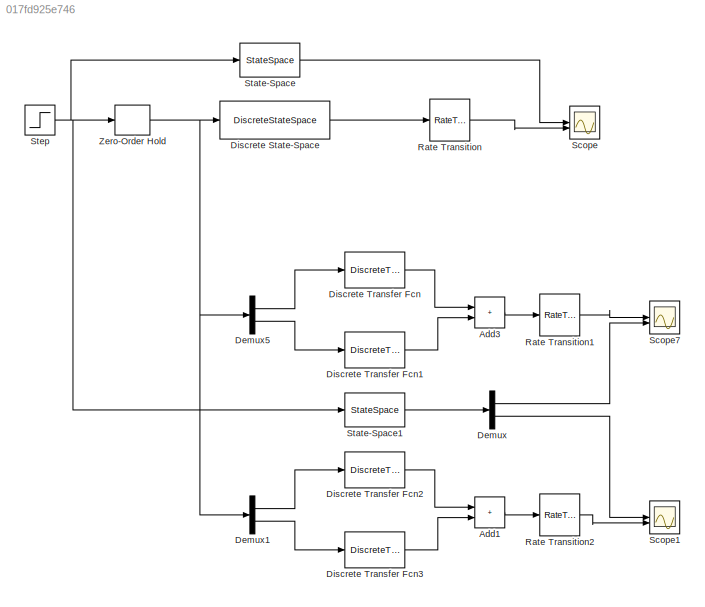
MODEL slx_017fd925e746
KIND model
CONFIG AbsTol = auto
CONFIG EnableMultiTasking = off
CONFIG FixedStep = auto
CONFIG MaxStep = auto
CONFIG MinStep = auto
CONFIG RelTol = 1e-3
CONFIG SampleTimeConstraint = Unconstrained
CONFIG SolverName = VariableStepAuto
CONFIG StartTime = 0.0
CONFIG StopTime = 0.3
BLOCK [Sum] Add1
  IconShape = rectangular
BLOCK [Sum] Add3
  IconShape = rectangular
BLOCK [Demux] Demux
  Outputs = 2
BLOCK [Demux] Demux1
  Outputs = 2
BLOCK [Demux] Demux5
  Outputs = 2
BLOCK [DiscreteStateSpace] Discrete State-Space
  A = A_d
  B = B_d
  C = C_d
  D = D_d
  SampleTime = h
BLOCK [DiscreteTransferFcn] Discrete Transfer Fcn
  Denominator = denz1
  InputPortMap = u0
  Numerator = numz1(1, :)
BLOCK [DiscreteTransferFcn] Discrete Transfer Fcn1
  Denominator = denz1
  InputPortMap = u0
  Numerator = numz1(2, :)
BLOCK [DiscreteTransferFcn] Discrete Transfer Fcn2
  Denominator = denz2
  InputPortMap = u0
  Numerator = numz2(1, :)
BLOCK [DiscreteTransferFcn] Discrete Transfer Fcn3
  Denominator = denz2
  InputPortMap = u0
  Numerator = numz2(2, :)
BLOCK [RateTransition] Rate Transition
BLOCK [RateTransition] Rate Transition1
BLOCK [RateTransition] Rate Transition2
BLOCK [Scope] Scope
  Floating = off
  NumInputPorts = 2
  ScopeSpecificationString = Simulink.scopes.TimeScopeBlockCfg('CurrentConfiguration', extmgr.ConfigurationSet(extmgr.Configuration('Core','General UI',true),extmgr.Configuration('Core','Source UI',true),extmgr.Configuration('Sources','WiredSimulink',true),extmgr.Configuration('Visuals','Time Domain',true,'SerializedDisplays',{struct('MinYLimReal','-44.28634','MaxYLimReal','398.3686','YLabelReal','','MinYLimMag','0.00000','Ma...<+1484ch>
BLOCK [Scope] Scope1
  Floating = off
  NumInputPorts = 2
  ScopeSpecificationString = Simulink.scopes.TimeScopeBlockCfg('CurrentConfiguration', extmgr.ConfigurationSet(extmgr.Configuration('Core','General UI',true),extmgr.Configuration('Core','Source UI',true),extmgr.Configuration('Sources','WiredSimulink',true,'DataLoggingVariableName','ScopeData2'),extmgr.Configuration('Visuals','Time Domain',true,'SerializedDisplays',{struct('MinYLimReal','-44.28634','MaxYLimReal','398.3686','YL...<+1511ch>
BLOCK [Scope] Scope7
  Floating = off
  NumInputPorts = 2
  ScopeSpecificationString = Simulink.scopes.TimeScopeBlockCfg('CurrentConfiguration', extmgr.ConfigurationSet(extmgr.Configuration('Core','General UI',true),extmgr.Configuration('Core','Source UI',true),extmgr.Configuration('Sources','WiredSimulink',true,'DataLoggingVariableName','ScopeData1'),extmgr.Configuration('Visuals','Time Domain',true,'SerializedDisplays',{struct('MinYLimReal','-1.63175','MaxYLimReal','14.68578','YLa...<+1511ch>
BLOCK [StateSpace] State-Space
  A = A
  B = B
  C = C
  D = D
  InitialCondition = 0
BLOCK [StateSpace] State-Space1
  A = A
  B = B
  C = C
  D = D
  InitialCondition = 0
BLOCK [Step] Step
  After = [24; 0.04]
  Before = [0, 0]
  SampleTime = h
  Time = 0
BLOCK [ZeroOrderHold] Zero-Order Hold
  SampleTime = h
LINE Add1:1 -> Rate Transition2:1
LINE Add3:1 -> Rate Transition1:1
LINE Demux1:1 -> Discrete Transfer Fcn2:1
LINE Demux1:2 -> Discrete Transfer Fcn3:1
LINE Demux5:1 -> Discrete Transfer Fcn:1
LINE Demux5:2 -> Discrete Transfer Fcn1:1
LINE Demux:1 -> Scope7:2
LINE Demux:2 -> Scope1:1
LINE Discrete State-Space:1 -> Rate Transition:1
LINE Discrete Transfer Fcn1:1 -> Add3:2
LINE Discrete Transfer Fcn2:1 -> Add1:1
LINE Discrete Transfer Fcn3:1 -> Add1:2
LINE Discrete Transfer Fcn:1 -> Add3:1
LINE Rate Transition1:1 -> Scope7:1
LINE Rate Transition2:1 -> Scope1:2
LINE Rate Transition:1 -> Scope:2
LINE State-Space1:1 -> Demux:1
LINE State-Space:1 -> Scope:1
NET Step:1 -> State-Space1:1, State-Space:1, Zero-Order Hold:1
NET Zero-Order Hold:1 -> Demux1:1, Demux5:1, Discrete State-Space:1
note: NET lines group one-source signal fan-out (src -> all destinations, sorted); 1:1 wires keep LINE
